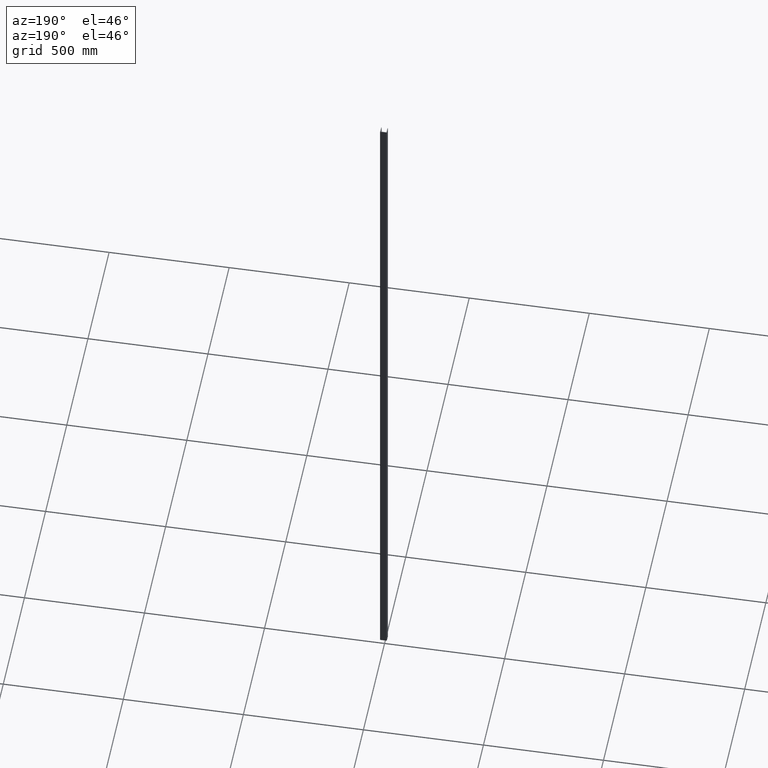
[diagram: clean part render]
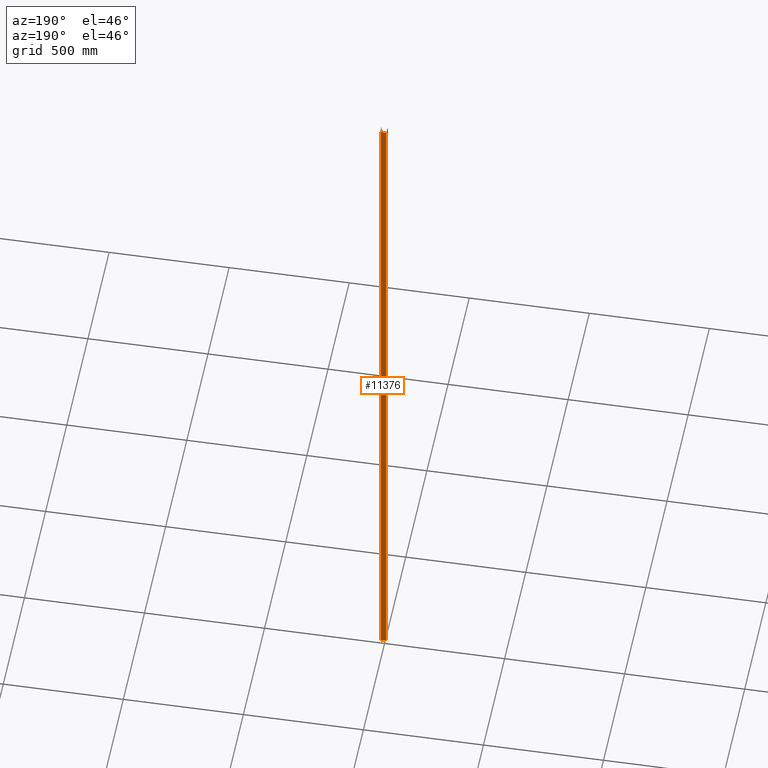
[diagram: same view with one face highlighted and labeled with its STEP entity id]
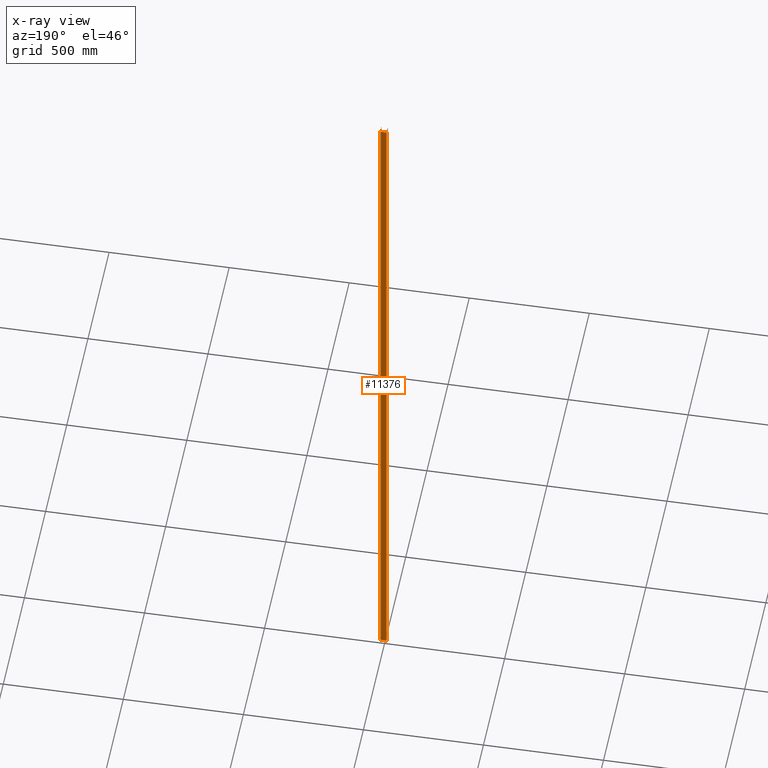
[diagram: x-ray of the same camera — body ghosted, the highlighted face saturated]
A machine part, auxiliary view. The second image highlights one B-rep face of the part: STEP entity #11376.
The next image is the same camera in x-ray: the body ghosted, the highlighted face saturated — about 0% of this face is hidden behind the body in this view.
In plain terms, the highlighted planar face has unit normal (-0, 1, 0).
Its self-contained STEP definition (entity closure, byte-faithful):
#210 = DIRECTION ( 'NONE',  ( 1.000000000000000000, 1.445602896647339163E-16, 0.000000000000000000 ) ) ;
#578 = CARTESIAN_POINT ( 'NONE',  ( 11.99999999999999645, 26.00000000000000355, 1500.000000000000000 ) ) ;
#1301 = CARTESIAN_POINT ( 'NONE',  ( -12.00000000000000355, 26.00000000000000000, 1500.000000000000000 ) ) ;
#2132 = VERTEX_POINT ( 'NONE', #10548 ) ;
#2668 = LINE ( 'NONE', #14536, #11273 ) ;
#2939 = CARTESIAN_POINT ( 'NONE',  ( -12.00000000000000355, 26.00000000000000000, -1500.000000000000000 ) ) ;
#3439 = VERTEX_POINT ( 'NONE', #3727 ) ;
#3633 = CARTESIAN_POINT ( 'NONE',  ( -12.00000000000000355, 26.00000000000000000, 1500.000000000000000 ) ) ;
#3727 = CARTESIAN_POINT ( 'NONE',  ( -12.00000000000000355, 26.00000000000000000, -1500.000000000000000 ) ) ;
#4056 = EDGE_CURVE ( 'NONE', #3439, #2132, #14117, .T. ) ;
#4112 = LINE ( 'NONE', #3633, #9523 ) ;
#5355 = EDGE_CURVE ( 'NONE', #6131, #6828, #4112, .T. ) ;
#5448 = AXIS2_PLACEMENT_3D ( 'NONE', #10506, #10609, #13855 ) ;
#5651 = LINE ( 'NONE', #1301, #14433 ) ;
#5945 = ORIENTED_EDGE ( 'NONE', *, *, #5355, .T. ) ;
#6131 = VERTEX_POINT ( 'NONE', #13410 ) ;
#6211 = PLANE ( 'NONE',  #5448 ) ;
#6391 = VECTOR ( 'NONE', #14088, 1000.000000000000000 ) ;
#6828 = VERTEX_POINT ( 'NONE', #578 ) ;
#7193 = EDGE_CURVE ( 'NONE', #6131, #3439, #5651, .T. ) ;
#7815 = DIRECTION ( 'NONE',  ( -0.000000000000000000, -0.000000000000000000, -1.000000000000000000 ) ) ;
#7894 = ORIENTED_EDGE ( 'NONE', *, *, #7193, .F. ) ;
#9009 = FACE_OUTER_BOUND ( 'NONE', #9992, .T. ) ;
#9149 = DIRECTION ( 'NONE',  ( -0.000000000000000000, -0.000000000000000000, -1.000000000000000000 ) ) ;
#9523 = VECTOR ( 'NONE', #210, 1000.000000000000000 ) ;
#9538 = ORIENTED_EDGE ( 'NONE', *, *, #4056, .F. ) ;
#9992 = EDGE_LOOP ( 'NONE', ( #9538, #7894, #5945, #12174 ) ) ;
#10506 = CARTESIAN_POINT ( 'NONE',  ( -12.00000000000000355, 26.00000000000000000, 1500.000000000000000 ) ) ;
#10548 = CARTESIAN_POINT ( 'NONE',  ( 11.99999999999999645, 26.00000000000000355, -1500.000000000000000 ) ) ;
#10609 = DIRECTION ( 'NONE',  ( -1.445602896647339163E-16, 1.000000000000000000, 0.000000000000000000 ) ) ;
#11273 = VECTOR ( 'NONE', #7815, 1000.000000000000000 ) ;
#11376 = ADVANCED_FACE ( 'NONE', ( #9009 ), #6211, .T. ) ;
#11691 = EDGE_CURVE ( 'NONE', #6828, #2132, #2668, .T. ) ;
#12174 = ORIENTED_EDGE ( 'NONE', *, *, #11691, .T. ) ;
#13410 = CARTESIAN_POINT ( 'NONE',  ( -12.00000000000000355, 26.00000000000000000, 1500.000000000000000 ) ) ;
#13855 = DIRECTION ( 'NONE',  ( -1.000000000000000000, -1.445602896647339163E-16, 0.000000000000000000 ) ) ;
#14088 = DIRECTION ( 'NONE',  ( 1.000000000000000000, 1.445602896647339163E-16, 0.000000000000000000 ) ) ;
#14117 = LINE ( 'NONE', #2939, #6391 ) ;
#14433 = VECTOR ( 'NONE', #9149, 1000.000000000000000 ) ;
#14536 = CARTESIAN_POINT ( 'NONE',  ( 11.99999999999999645, 26.00000000000000355, 1500.000000000000000 ) ) ;